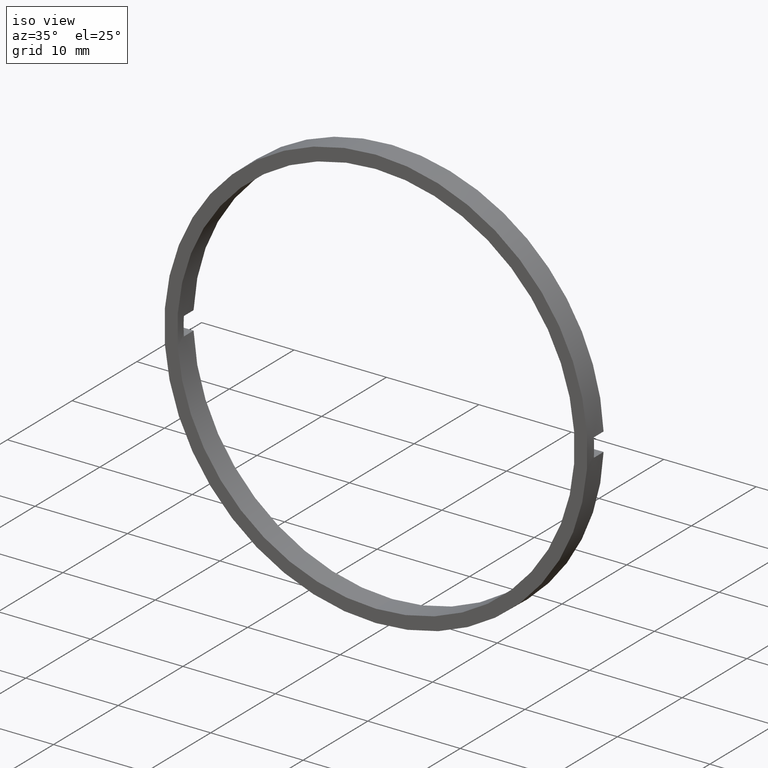
[diagram: clean part render]
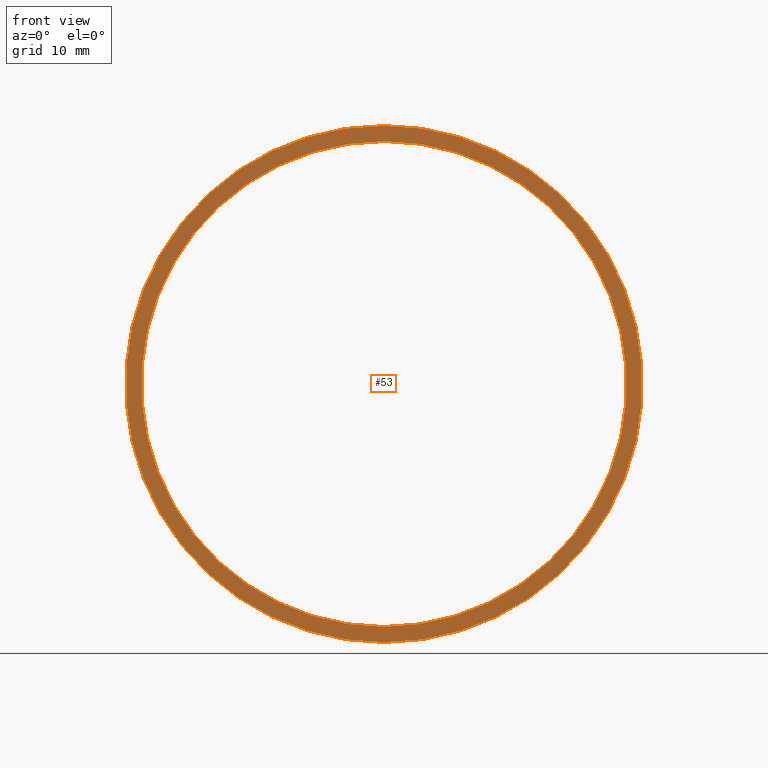
[diagram: tour spotlight — one face highlighted and labeled with its STEP entity id]
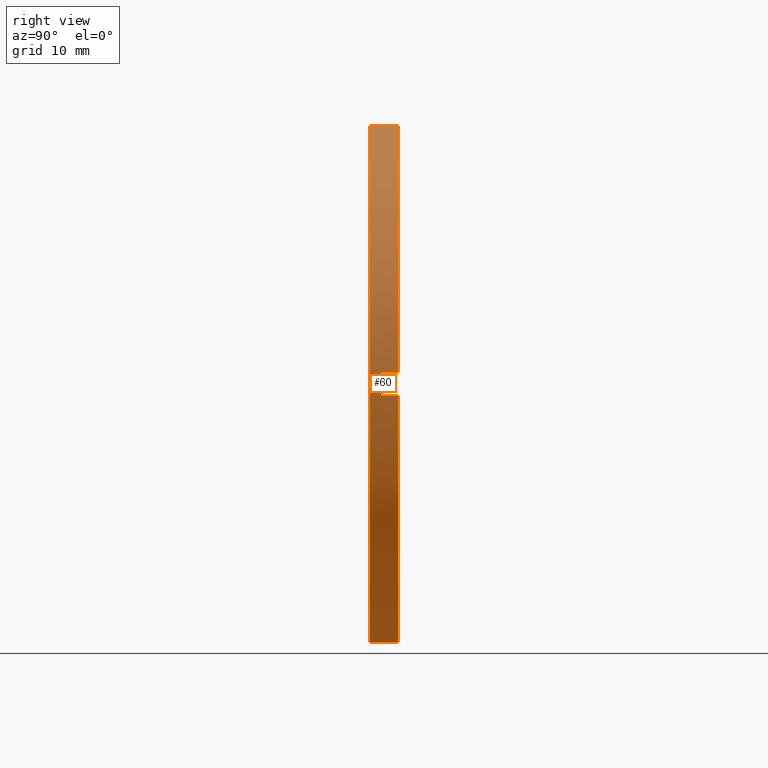
[diagram: tour spotlight — one face highlighted and labeled with its STEP entity id]
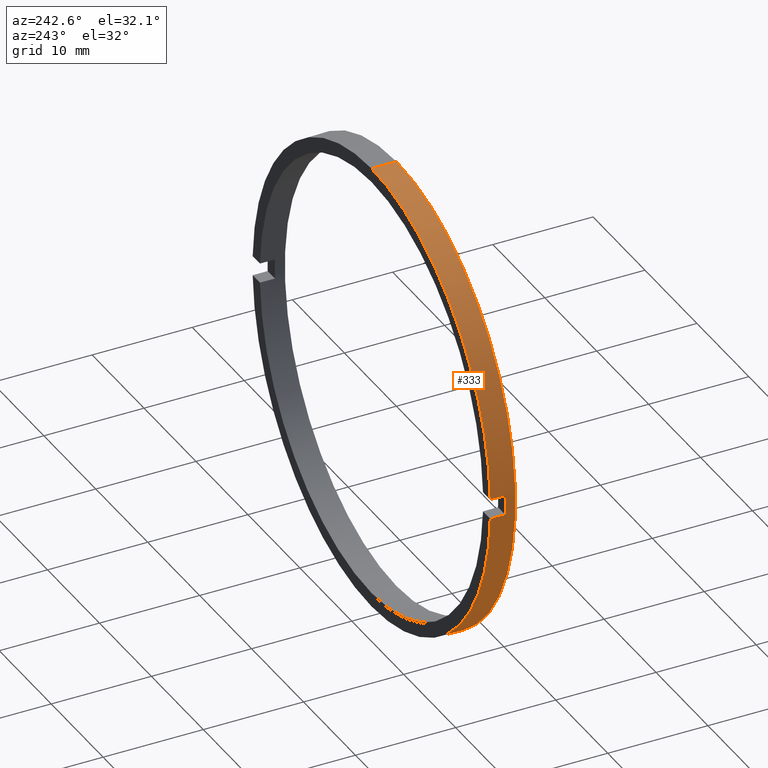
[diagram: tour spotlight — one face highlighted and labeled with its STEP entity id]
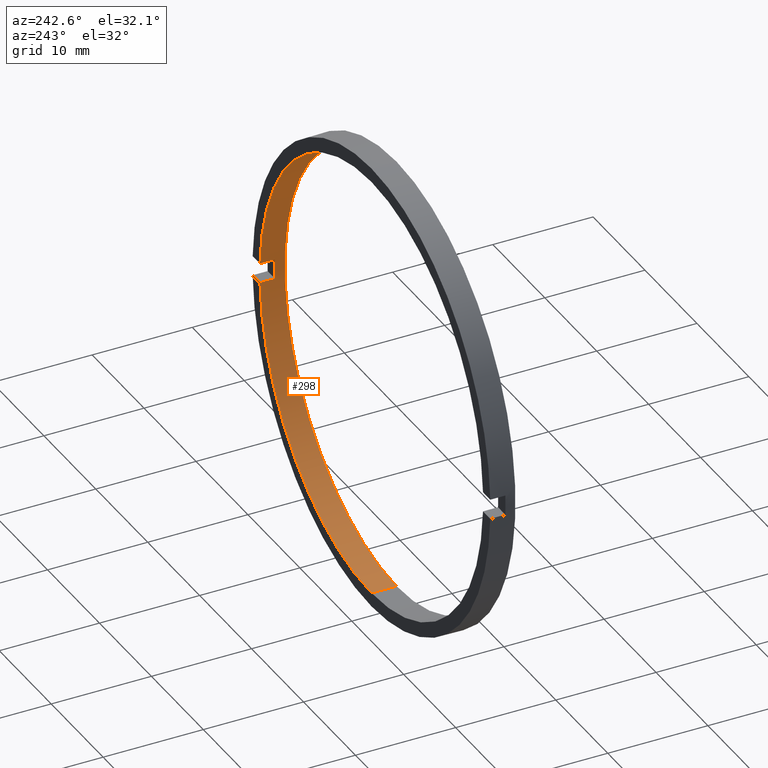
[diagram: tour spotlight — one face highlighted and labeled with its STEP entity id]
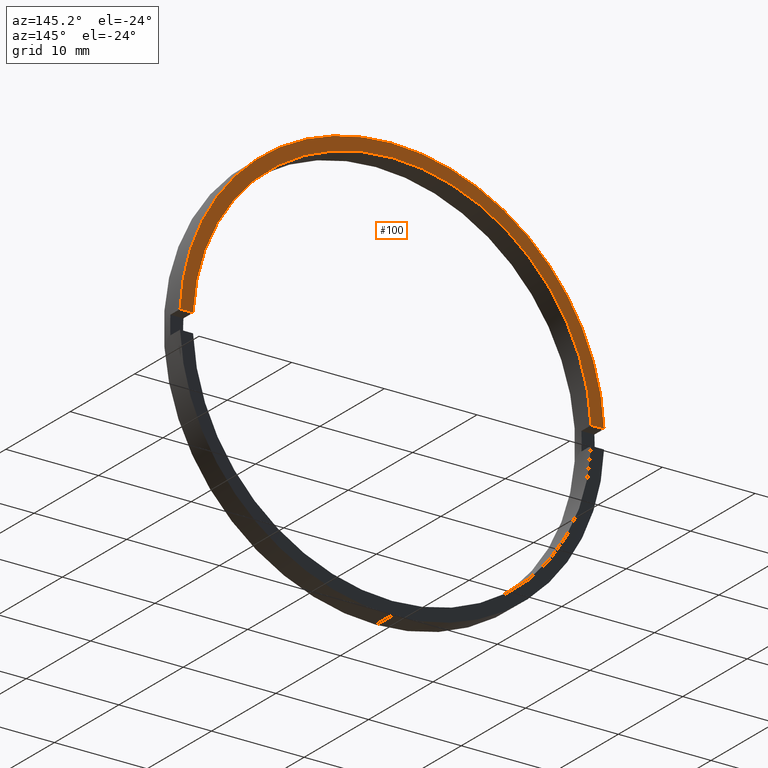
[diagram: tour spotlight — one face highlighted and labeled with its STEP entity id]
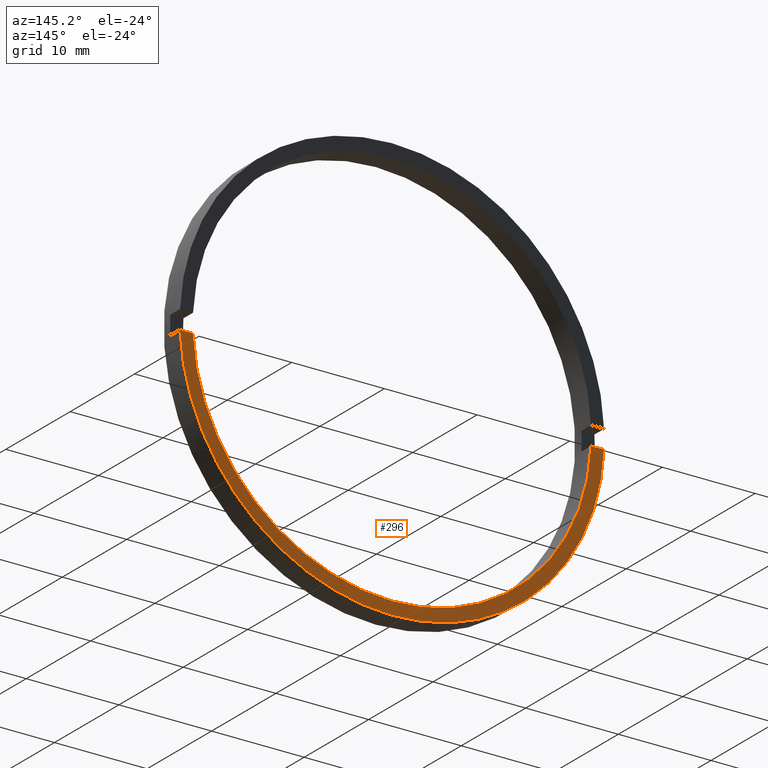
[diagram: tour spotlight — one face highlighted and labeled with its STEP entity id]
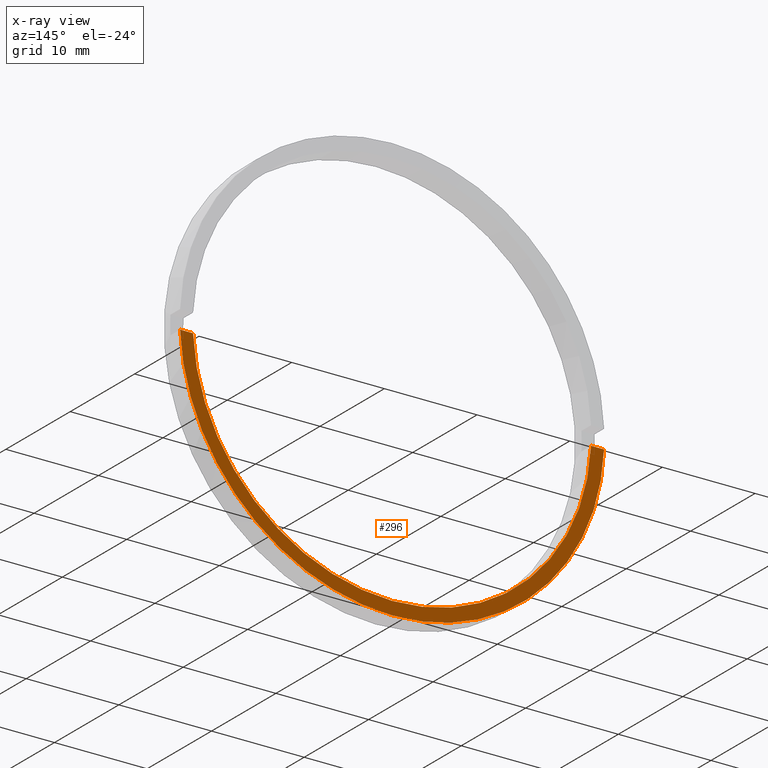
[diagram: x-ray of the same camera — body ghosted, this tour face saturated]
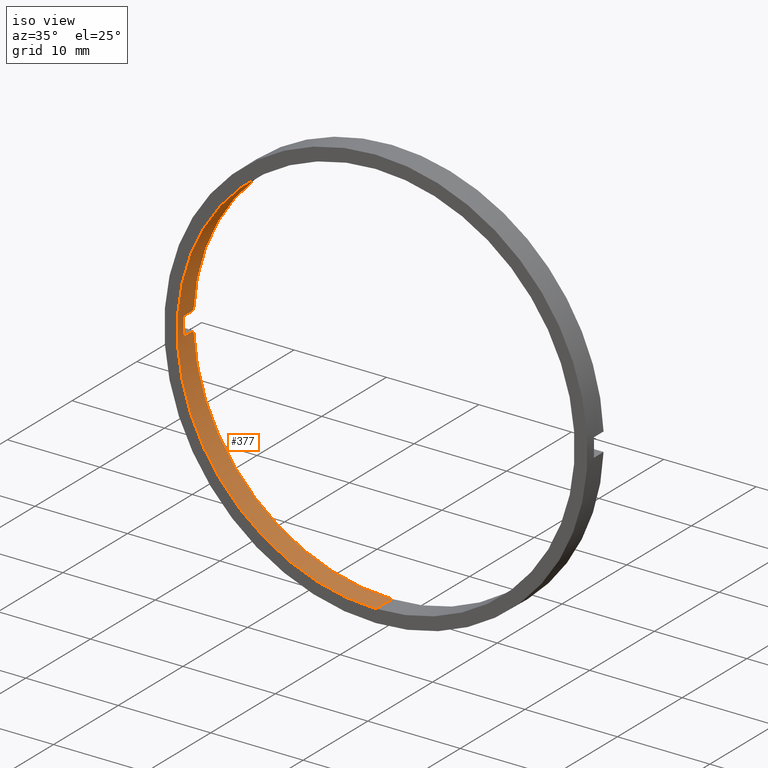
[diagram: tour spotlight — one face highlighted and labeled with its STEP entity id]
A machine part: a face-by-face anatomy tour. The part has 13 B-rep faces; the first image is the clean iso view, then the 7 largest visible faces are spotlighted one at a time (largest first), each with its STEP entity span.

Face 1 — front view, entity #53. In plain terms, the highlighted planar face has unit normal (-0, 1, 0).
Definition (entity closure, byte-faithful):
#1 = DIRECTION ( 'NONE',  ( 0.0000000000000000000, 0.0000000000000000000, 1.000000000000000000 ) ) ;
#2 = EDGE_LOOP ( 'NONE', ( #66, #15 ) ) ;
#15 = ORIENTED_EDGE ( 'NONE', *, *, #205, .F. ) ;
#22 = AXIS2_PLACEMENT_3D ( 'NONE', #202, #320, #395 ) ;
#28 = VERTEX_POINT ( 'NONE', #117 ) ;
#42 = CARTESIAN_POINT ( 'NONE',  ( 0.0000000000000000000, -4.464249787179428900, 0.0000000000000000000 ) ) ;
#44 = CARTESIAN_POINT ( 'NONE',  ( 0.0000000000000000000, -4.464249787179428900, 0.0000000000000000000 ) ) ;
#53 = ADVANCED_FACE ( 'NONE', ( #153, #353 ), #354, .F. ) ;
#66 = ORIENTED_EDGE ( 'NONE', *, *, #74, .F. ) ;
#74 = EDGE_CURVE ( 'NONE', #78, #28, #195, .T. ) ;
#78 = VERTEX_POINT ( 'NONE', #390 ) ;
#79 = EDGE_CURVE ( 'NONE', #286, #388, #393, .T. ) ;
#85 = EDGE_LOOP ( 'NONE', ( #260, #266 ) ) ;
#94 = CARTESIAN_POINT ( 'NONE',  ( 0.0000000000000000000, -4.464249787179428900, 0.0000000000000000000 ) ) ;
#117 = CARTESIAN_POINT ( 'NONE',  ( 2.804441170047439800E-015, -4.464249787179428900, -22.90000000000000600 ) ) ;
#131 = AXIS2_PLACEMENT_3D ( 'NONE', #44, #203, #1 ) ;
#134 = EDGE_CURVE ( 'NONE', #388, #286, #145, .T. ) ;
#145 = CIRCLE ( 'NONE', #22, 21.50000000000000400 ) ;
#150 = CARTESIAN_POINT ( 'NONE',  ( 0.0000000000000000000, -4.464249787179428900, 21.50000000000000400 ) ) ;
#153 = FACE_OUTER_BOUND ( 'NONE', #2, .T. ) ;
#163 = DIRECTION ( 'NONE',  ( 0.0000000000000000000, 0.0000000000000000000, 1.000000000000000000 ) ) ;
#195 = CIRCLE ( 'NONE', #422, 22.90000000000000600 ) ;
#202 = CARTESIAN_POINT ( 'NONE',  ( 0.0000000000000000000, -4.464249787179428900, 0.0000000000000000000 ) ) ;
#203 = DIRECTION ( 'NONE',  ( -0.0000000000000000000, 1.000000000000000000, -0.0000000000000000000 ) ) ;
#205 = EDGE_CURVE ( 'NONE', #28, #78, #330, .T. ) ;
#242 = DIRECTION ( 'NONE',  ( 0.0000000000000000000, 0.0000000000000000000, 1.000000000000000000 ) ) ;
#243 = DIRECTION ( 'NONE',  ( -0.0000000000000000000, 1.000000000000000000, -0.0000000000000000000 ) ) ;
#250 = DIRECTION ( 'NONE',  ( 0.0000000000000000000, 0.0000000000000000000, 1.000000000000000000 ) ) ;
#260 = ORIENTED_EDGE ( 'NONE', *, *, #134, .T. ) ;
#266 = ORIENTED_EDGE ( 'NONE', *, *, #79, .T. ) ;
#286 = VERTEX_POINT ( 'NONE', #404 ) ;
#297 = AXIS2_PLACEMENT_3D ( 'NONE', #316, #352, #163 ) ;
#316 = CARTESIAN_POINT ( 'NONE',  ( 21.50000000000000400, -4.464249787179428900, 0.0000000000000000000 ) ) ;
#320 = DIRECTION ( 'NONE',  ( -0.0000000000000000000, 1.000000000000000000, -0.0000000000000000000 ) ) ;
#329 = DIRECTION ( 'NONE',  ( -0.0000000000000000000, 1.000000000000000000, -0.0000000000000000000 ) ) ;
#330 = CIRCLE ( 'NONE', #436, 22.90000000000000600 ) ;
#352 = DIRECTION ( 'NONE',  ( -0.0000000000000000000, 1.000000000000000000, 0.0000000000000000000 ) ) ;
#353 = FACE_BOUND ( 'NONE', #85, .T. ) ;
#354 = PLANE ( 'NONE',  #297 ) ;
#388 = VERTEX_POINT ( 'NONE', #150 ) ;
#390 = CARTESIAN_POINT ( 'NONE',  ( 0.0000000000000000000, -4.464249787179428900, 22.90000000000000600 ) ) ;
#393 = CIRCLE ( 'NONE', #131, 21.50000000000000400 ) ;
#395 = DIRECTION ( 'NONE',  ( 0.0000000000000000000, 0.0000000000000000000, 1.000000000000000000 ) ) ;
#404 = CARTESIAN_POINT ( 'NONE',  ( 2.632990618166810000E-015, -4.464249787179428900, -21.50000000000000400 ) ) ;
#422 = AXIS2_PLACEMENT_3D ( 'NONE', #42, #243, #242 ) ;
#436 = AXIS2_PLACEMENT_3D ( 'NONE', #94, #329, #250 ) ;

Face 2 — right view, entity #60. In plain terms, the highlighted cylindrical surface (partial cylindrical patch) has radius 22.9 mm, axis along (-0, 1, -0).
Definition (entity closure, byte-faithful):
#5 = DIRECTION ( 'NONE',  ( 0.0000000000000000000, 0.0000000000000000000, 1.000000000000000000 ) ) ;
#12 = CIRCLE ( 'NONE', #125, 22.90000000000000600 ) ;
#13 = EDGE_CURVE ( 'NONE', #28, #345, #375, .T. ) ;
#17 = CARTESIAN_POINT ( 'NONE',  ( 22.87815552005886100, -1.964249787179430000, 1.000000000000000000 ) ) ;
#21 = VERTEX_POINT ( 'NONE', #386 ) ;
#28 = VERTEX_POINT ( 'NONE', #117 ) ;
#42 = CARTESIAN_POINT ( 'NONE',  ( 0.0000000000000000000, -4.464249787179428900, 0.0000000000000000000 ) ) ;
#43 = VECTOR ( 'NONE', #462, 1000.000000000000000 ) ;
#48 = LINE ( 'NONE', #238, #496 ) ;
#50 = DIRECTION ( 'NONE',  ( 0.0000000000000000000, 0.0000000000000000000, 1.000000000000000000 ) ) ;
#57 = EDGE_CURVE ( 'NONE', #199, #321, #48, .T. ) ;
#60 = ADVANCED_FACE ( 'NONE', ( #251 ), #174, .T. ) ;
#64 = ORIENTED_EDGE ( 'NONE', *, *, #232, .F. ) ;
#74 = EDGE_CURVE ( 'NONE', #78, #28, #195, .T. ) ;
#78 = VERTEX_POINT ( 'NONE', #390 ) ;
#99 = EDGE_CURVE ( 'NONE', #78, #230, #349, .T. ) ;
#117 = CARTESIAN_POINT ( 'NONE',  ( 2.804441170047439800E-015, -4.464249787179428900, -22.90000000000000600 ) ) ;
#125 = AXIS2_PLACEMENT_3D ( 'NONE', #182, #218, #255 ) ;
#132 = CARTESIAN_POINT ( 'NONE',  ( 22.87815552005887200, -3.464249787179428400, 0.9999999999999995600 ) ) ;
#139 = DIRECTION ( 'NONE',  ( 0.0000000000000000000, -1.000000000000000000, 0.0000000000000000000 ) ) ;
#154 = ORIENTED_EDGE ( 'NONE', *, *, #13, .T. ) ;
#160 = DIRECTION ( 'NONE',  ( -0.0000000000000000000, 1.000000000000000000, -0.0000000000000000000 ) ) ;
#169 = DIRECTION ( 'NONE',  ( -0.0000000000000000000, 1.000000000000000000, -0.0000000000000000000 ) ) ;
#171 = CARTESIAN_POINT ( 'NONE',  ( 0.0000000000000000000, 56.26084262701361600, 22.90000000000000600 ) ) ;
#174 = CYLINDRICAL_SURFACE ( 'NONE', #396, 22.90000000000000600 ) ;
#182 = CARTESIAN_POINT ( 'NONE',  ( 0.0000000000000000000, -3.464249787179428400, 0.0000000000000000000 ) ) ;
#195 = CIRCLE ( 'NONE', #422, 22.90000000000000600 ) ;
#196 = EDGE_CURVE ( 'NONE', #252, #21, #438, .T. ) ;
#199 = VERTEX_POINT ( 'NONE', #132 ) ;
#212 = CARTESIAN_POINT ( 'NONE',  ( 0.0000000000000000000, -1.964249787179427100, 22.90000000000000600 ) ) ;
#216 = EDGE_CURVE ( 'NONE', #230, #321, #484, .T. ) ;
#217 = DIRECTION ( 'NONE',  ( 0.0000000000000000000, 0.0000000000000000000, 1.000000000000000000 ) ) ;
#218 = DIRECTION ( 'NONE',  ( 0.0000000000000000000, 1.000000000000000000, 0.0000000000000000000 ) ) ;
#229 = VECTOR ( 'NONE', #139, 1000.000000000000000 ) ;
#230 = VERTEX_POINT ( 'NONE', #212 ) ;
#232 = EDGE_CURVE ( 'NONE', #252, #345, #506, .T. ) ;
#236 = CARTESIAN_POINT ( 'NONE',  ( 2.804441170047439800E-015, 56.26084262701361600, -22.90000000000000600 ) ) ;
#238 = CARTESIAN_POINT ( 'NONE',  ( 22.87815552005887600, 56.26084262701361600, 1.000000000000000000 ) ) ;
#240 = ORIENTED_EDGE ( 'NONE', *, *, #196, .T. ) ;
#241 = ORIENTED_EDGE ( 'NONE', *, *, #290, .F. ) ;
#242 = DIRECTION ( 'NONE',  ( 0.0000000000000000000, 0.0000000000000000000, 1.000000000000000000 ) ) ;
#243 = DIRECTION ( 'NONE',  ( -0.0000000000000000000, 1.000000000000000000, -0.0000000000000000000 ) ) ;
#249 = CARTESIAN_POINT ( 'NONE',  ( 0.0000000000000000000, -1.964249787179427100, 0.0000000000000000000 ) ) ;
#251 = FACE_OUTER_BOUND ( 'NONE', #355, .T. ) ;
#252 = VERTEX_POINT ( 'NONE', #284 ) ;
#255 = DIRECTION ( 'NONE',  ( 0.0000000000000000000, 0.0000000000000000000, 1.000000000000000000 ) ) ;
#263 = AXIS2_PLACEMENT_3D ( 'NONE', #249, #435, #50 ) ;
#277 = DIRECTION ( 'NONE',  ( -0.0000000000000000000, 1.000000000000000000, -0.0000000000000000000 ) ) ;
#284 = CARTESIAN_POINT ( 'NONE',  ( 22.87815552005886100, -1.964249787179430000, -1.000000000000000000 ) ) ;
#289 = CARTESIAN_POINT ( 'NONE',  ( 22.87815552005887600, 56.26084262701361600, -1.000000000000000000 ) ) ;
#290 = EDGE_CURVE ( 'NONE', #199, #21, #12, .T. ) ;
#304 = CARTESIAN_POINT ( 'NONE',  ( 2.804441170047439800E-015, -1.964249787179427100, -22.90000000000000600 ) ) ;
#310 = ORIENTED_EDGE ( 'NONE', *, *, #57, .T. ) ;
#318 = CARTESIAN_POINT ( 'NONE',  ( 0.0000000000000000000, 56.26084262701361600, 0.0000000000000000000 ) ) ;
#321 = VERTEX_POINT ( 'NONE', #17 ) ;
#328 = CARTESIAN_POINT ( 'NONE',  ( 0.0000000000000000000, -1.964249787179427100, 0.0000000000000000000 ) ) ;
#338 = ORIENTED_EDGE ( 'NONE', *, *, #74, .T. ) ;
#341 = AXIS2_PLACEMENT_3D ( 'NONE', #328, #402, #217 ) ;
#345 = VERTEX_POINT ( 'NONE', #304 ) ;
#349 = LINE ( 'NONE', #171, #433 ) ;
#355 = EDGE_LOOP ( 'NONE', ( #338, #154, #64, #240, #241, #310, #399, #356 ) ) ;
#356 = ORIENTED_EDGE ( 'NONE', *, *, #99, .F. ) ;
#375 = LINE ( 'NONE', #236, #43 ) ;
#386 = CARTESIAN_POINT ( 'NONE',  ( 22.87815552005887200, -3.464249787179428400, -0.9999999999999995600 ) ) ;
#390 = CARTESIAN_POINT ( 'NONE',  ( 0.0000000000000000000, -4.464249787179428900, 22.90000000000000600 ) ) ;
#396 = AXIS2_PLACEMENT_3D ( 'NONE', #318, #277, #5 ) ;
#399 = ORIENTED_EDGE ( 'NONE', *, *, #216, .F. ) ;
#402 = DIRECTION ( 'NONE',  ( -0.0000000000000000000, 1.000000000000000000, -0.0000000000000000000 ) ) ;
#422 = AXIS2_PLACEMENT_3D ( 'NONE', #42, #243, #242 ) ;
#433 = VECTOR ( 'NONE', #169, 1000.000000000000000 ) ;
#435 = DIRECTION ( 'NONE',  ( -0.0000000000000000000, 1.000000000000000000, -0.0000000000000000000 ) ) ;
#438 = LINE ( 'NONE', #289, #229 ) ;
#462 = DIRECTION ( 'NONE',  ( -0.0000000000000000000, 1.000000000000000000, -0.0000000000000000000 ) ) ;
#484 = CIRCLE ( 'NONE', #263, 22.90000000000000600 ) ;
#496 = VECTOR ( 'NONE', #160, 1000.000000000000000 ) ;
#506 = CIRCLE ( 'NONE', #341, 22.90000000000000600 ) ;

Face 3 — auxiliary view, entity #333. In plain terms, the highlighted cylindrical surface (partial cylindrical patch) has radius 22.9 mm, axis along (-0, 1, -0).
Definition (entity closure, byte-faithful):
#4 = EDGE_CURVE ( 'NONE', #167, #287, #423, .T. ) ;
#13 = EDGE_CURVE ( 'NONE', #28, #345, #375, .T. ) ;
#16 = CARTESIAN_POINT ( 'NONE',  ( 0.0000000000000000000, -1.964249787179427100, 0.0000000000000000000 ) ) ;
#24 = CARTESIAN_POINT ( 'NONE',  ( -22.87815552005887600, 56.26084262701361600, 1.000000000000000000 ) ) ;
#28 = VERTEX_POINT ( 'NONE', #117 ) ;
#33 = LINE ( 'NONE', #24, #172 ) ;
#39 = CARTESIAN_POINT ( 'NONE',  ( -22.87815552005887200, -3.464249787179428400, 0.9999999999999995600 ) ) ;
#43 = VECTOR ( 'NONE', #462, 1000.000000000000000 ) ;
#46 = CARTESIAN_POINT ( 'NONE',  ( -22.87815552005887600, -1.964249787179430000, -1.000000000000000000 ) ) ;
#47 = EDGE_CURVE ( 'NONE', #167, #115, #265, .T. ) ;
#58 = ORIENTED_EDGE ( 'NONE', *, *, #13, .F. ) ;
#77 = CARTESIAN_POINT ( 'NONE',  ( 0.0000000000000000000, -3.464249787179428400, 0.0000000000000000000 ) ) ;
#78 = VERTEX_POINT ( 'NONE', #390 ) ;
#83 = CIRCLE ( 'NONE', #348, 22.90000000000000600 ) ;
#89 = ORIENTED_EDGE ( 'NONE', *, *, #4, .T. ) ;
#94 = CARTESIAN_POINT ( 'NONE',  ( 0.0000000000000000000, -4.464249787179428900, 0.0000000000000000000 ) ) ;
#99 = EDGE_CURVE ( 'NONE', #78, #230, #349, .T. ) ;
#115 = VERTEX_POINT ( 'NONE', #39 ) ;
#117 = CARTESIAN_POINT ( 'NONE',  ( 2.804441170047439800E-015, -4.464249787179428900, -22.90000000000000600 ) ) ;
#130 = DIRECTION ( 'NONE',  ( -0.0000000000000000000, 1.000000000000000000, -0.0000000000000000000 ) ) ;
#138 = ORIENTED_EDGE ( 'NONE', *, *, #47, .F. ) ;
#141 = CARTESIAN_POINT ( 'NONE',  ( 0.0000000000000000000, 56.26084262701361600, 0.0000000000000000000 ) ) ;
#155 = ORIENTED_EDGE ( 'NONE', *, *, #334, .T. ) ;
#166 = EDGE_CURVE ( 'NONE', #406, #230, #186, .T. ) ;
#167 = VERTEX_POINT ( 'NONE', #248 ) ;
#169 = DIRECTION ( 'NONE',  ( -0.0000000000000000000, 1.000000000000000000, -0.0000000000000000000 ) ) ;
#171 = CARTESIAN_POINT ( 'NONE',  ( 0.0000000000000000000, 56.26084262701361600, 22.90000000000000600 ) ) ;
#172 = VECTOR ( 'NONE', #335, 1000.000000000000000 ) ;
#186 = CIRCLE ( 'NONE', #285, 22.90000000000000600 ) ;
#188 = CARTESIAN_POINT ( 'NONE',  ( -22.87815552005887600, -1.964249787179430000, 1.000000000000000000 ) ) ;
#194 = AXIS2_PLACEMENT_3D ( 'NONE', #141, #264, #259 ) ;
#197 = DIRECTION ( 'NONE',  ( 0.0000000000000000000, 1.000000000000000000, 0.0000000000000000000 ) ) ;
#205 = EDGE_CURVE ( 'NONE', #28, #78, #330, .T. ) ;
#212 = CARTESIAN_POINT ( 'NONE',  ( 0.0000000000000000000, -1.964249787179427100, 22.90000000000000600 ) ) ;
#224 = VECTOR ( 'NONE', #420, 1000.000000000000000 ) ;
#230 = VERTEX_POINT ( 'NONE', #212 ) ;
#236 = CARTESIAN_POINT ( 'NONE',  ( 2.804441170047439800E-015, 56.26084262701361600, -22.90000000000000600 ) ) ;
#248 = CARTESIAN_POINT ( 'NONE',  ( -22.87815552005887200, -3.464249787179428400, -0.9999999999999995600 ) ) ;
#250 = DIRECTION ( 'NONE',  ( 0.0000000000000000000, 0.0000000000000000000, 1.000000000000000000 ) ) ;
#259 = DIRECTION ( 'NONE',  ( 0.0000000000000000000, 0.0000000000000000000, 1.000000000000000000 ) ) ;
#264 = DIRECTION ( 'NONE',  ( -0.0000000000000000000, 1.000000000000000000, -0.0000000000000000000 ) ) ;
#265 = CIRCLE ( 'NONE', #488, 22.90000000000000600 ) ;
#273 = CARTESIAN_POINT ( 'NONE',  ( -22.87815552005887600, 56.26084262701361600, -1.000000000000000000 ) ) ;
#282 = ORIENTED_EDGE ( 'NONE', *, *, #205, .T. ) ;
#285 = AXIS2_PLACEMENT_3D ( 'NONE', #16, #130, #291 ) ;
#287 = VERTEX_POINT ( 'NONE', #46 ) ;
#291 = DIRECTION ( 'NONE',  ( 0.0000000000000000000, 0.0000000000000000000, 1.000000000000000000 ) ) ;
#302 = ORIENTED_EDGE ( 'NONE', *, *, #343, .F. ) ;
#304 = CARTESIAN_POINT ( 'NONE',  ( 2.804441170047439800E-015, -1.964249787179427100, -22.90000000000000600 ) ) ;
#329 = DIRECTION ( 'NONE',  ( -0.0000000000000000000, 1.000000000000000000, -0.0000000000000000000 ) ) ;
#330 = CIRCLE ( 'NONE', #436, 22.90000000000000600 ) ;
#333 = ADVANCED_FACE ( 'NONE', ( #470 ), #500, .T. ) ;
#334 = EDGE_CURVE ( 'NONE', #406, #115, #33, .T. ) ;
#335 = DIRECTION ( 'NONE',  ( 0.0000000000000000000, -1.000000000000000000, 0.0000000000000000000 ) ) ;
#343 = EDGE_CURVE ( 'NONE', #345, #287, #83, .T. ) ;
#345 = VERTEX_POINT ( 'NONE', #304 ) ;
#348 = AXIS2_PLACEMENT_3D ( 'NONE', #446, #489, #450 ) ;
#349 = LINE ( 'NONE', #171, #433 ) ;
#375 = LINE ( 'NONE', #236, #43 ) ;
#390 = CARTESIAN_POINT ( 'NONE',  ( 0.0000000000000000000, -4.464249787179428900, 22.90000000000000600 ) ) ;
#406 = VERTEX_POINT ( 'NONE', #188 ) ;
#420 = DIRECTION ( 'NONE',  ( -0.0000000000000000000, 1.000000000000000000, -0.0000000000000000000 ) ) ;
#423 = LINE ( 'NONE', #273, #224 ) ;
#433 = VECTOR ( 'NONE', #169, 1000.000000000000000 ) ;
#436 = AXIS2_PLACEMENT_3D ( 'NONE', #94, #329, #250 ) ;
#446 = CARTESIAN_POINT ( 'NONE',  ( 0.0000000000000000000, -1.964249787179427100, 0.0000000000000000000 ) ) ;
#450 = DIRECTION ( 'NONE',  ( 0.0000000000000000000, 0.0000000000000000000, 1.000000000000000000 ) ) ;
#461 = DIRECTION ( 'NONE',  ( 0.0000000000000000000, 0.0000000000000000000, 1.000000000000000000 ) ) ;
#462 = DIRECTION ( 'NONE',  ( -0.0000000000000000000, 1.000000000000000000, -0.0000000000000000000 ) ) ;
#465 = ORIENTED_EDGE ( 'NONE', *, *, #99, .T. ) ;
#470 = FACE_OUTER_BOUND ( 'NONE', #502, .T. ) ;
#472 = ORIENTED_EDGE ( 'NONE', *, *, #166, .F. ) ;
#488 = AXIS2_PLACEMENT_3D ( 'NONE', #77, #197, #461 ) ;
#489 = DIRECTION ( 'NONE',  ( -0.0000000000000000000, 1.000000000000000000, -0.0000000000000000000 ) ) ;
#500 = CYLINDRICAL_SURFACE ( 'NONE', #194, 22.90000000000000600 ) ;
#502 = EDGE_LOOP ( 'NONE', ( #58, #282, #465, #472, #155, #138, #89, #302 ) ) ;

Face 4 — auxiliary view, entity #298. In plain terms, the highlighted cylindrical surface (partial cylindrical patch) has radius 21.5 mm, axis along (-0, 1, -0).
Definition (entity closure, byte-faithful):
#9 = DIRECTION ( 'NONE',  ( 0.0000000000000000000, 0.0000000000000000000, 1.000000000000000000 ) ) ;
#22 = AXIS2_PLACEMENT_3D ( 'NONE', #202, #320, #395 ) ;
#26 = VECTOR ( 'NONE', #261, 1000.000000000000000 ) ;
#27 = VERTEX_POINT ( 'NONE', #80 ) ;
#36 = EDGE_CURVE ( 'NONE', #286, #49, #292, .T. ) ;
#41 = LINE ( 'NONE', #300, #444 ) ;
#49 = VERTEX_POINT ( 'NONE', #351 ) ;
#65 = AXIS2_PLACEMENT_3D ( 'NONE', #151, #193, #233 ) ;
#69 = EDGE_CURVE ( 'NONE', #322, #49, #270, .T. ) ;
#72 = VERTEX_POINT ( 'NONE', #358 ) ;
#75 = DIRECTION ( 'NONE',  ( -0.0000000000000000000, 1.000000000000000000, -0.0000000000000000000 ) ) ;
#80 = CARTESIAN_POINT ( 'NONE',  ( 21.47673159491452900, -3.464249787179428400, -0.9999999999999995600 ) ) ;
#95 = ORIENTED_EDGE ( 'NONE', *, *, #239, .T. ) ;
#114 = CARTESIAN_POINT ( 'NONE',  ( 0.0000000000000000000, -1.964249787179427100, 21.50000000000000400 ) ) ;
#118 = FACE_OUTER_BOUND ( 'NONE', #191, .T. ) ;
#119 = DIRECTION ( 'NONE',  ( 0.0000000000000000000, 0.0000000000000000000, 1.000000000000000000 ) ) ;
#122 = EDGE_CURVE ( 'NONE', #231, #72, #501, .T. ) ;
#134 = EDGE_CURVE ( 'NONE', #388, #286, #145, .T. ) ;
#137 = ORIENTED_EDGE ( 'NONE', *, *, #430, .T. ) ;
#145 = CIRCLE ( 'NONE', #22, 21.50000000000000400 ) ;
#150 = CARTESIAN_POINT ( 'NONE',  ( 0.0000000000000000000, -4.464249787179428900, 21.50000000000000400 ) ) ;
#151 = CARTESIAN_POINT ( 'NONE',  ( 0.0000000000000000000, -3.464249787179428400, 0.0000000000000000000 ) ) ;
#191 = EDGE_LOOP ( 'NONE', ( #385, #428, #137, #95, #213, #214, #344, #275 ) ) ;
#193 = DIRECTION ( 'NONE',  ( -0.0000000000000000000, -1.000000000000000000, -0.0000000000000000000 ) ) ;
#200 = CARTESIAN_POINT ( 'NONE',  ( 2.632990618166810000E-015, 56.26084262701361600, -21.50000000000000400 ) ) ;
#202 = CARTESIAN_POINT ( 'NONE',  ( 0.0000000000000000000, -4.464249787179428900, 0.0000000000000000000 ) ) ;
#208 = CARTESIAN_POINT ( 'NONE',  ( 21.47673159491453300, 56.26084262701361600, 1.000000000000000000 ) ) ;
#211 = CIRCLE ( 'NONE', #482, 21.50000000000000400 ) ;
#213 = ORIENTED_EDGE ( 'NONE', *, *, #122, .T. ) ;
#214 = ORIENTED_EDGE ( 'NONE', *, *, #474, .F. ) ;
#215 = CARTESIAN_POINT ( 'NONE',  ( 21.47673159491452900, -1.964249787179427100, 0.9999999999999995600 ) ) ;
#220 = CARTESIAN_POINT ( 'NONE',  ( 0.0000000000000000000, 56.26084262701361600, 0.0000000000000000000 ) ) ;
#231 = VERTEX_POINT ( 'NONE', #215 ) ;
#233 = DIRECTION ( 'NONE',  ( -1.154631945610162800E-014, 0.0000000000000000000, 1.000000000000000000 ) ) ;
#239 = EDGE_CURVE ( 'NONE', #491, #231, #211, .T. ) ;
#261 = DIRECTION ( 'NONE',  ( -0.0000000000000000000, 1.000000000000000000, -0.0000000000000000000 ) ) ;
#270 = CIRCLE ( 'NONE', #272, 21.50000000000000400 ) ;
#272 = AXIS2_PLACEMENT_3D ( 'NONE', #392, #431, #119 ) ;
#275 = ORIENTED_EDGE ( 'NONE', *, *, #69, .T. ) ;
#281 = VECTOR ( 'NONE', #469, 1000.000000000000000 ) ;
#286 = VERTEX_POINT ( 'NONE', #404 ) ;
#292 = LINE ( 'NONE', #200, #476 ) ;
#295 = CARTESIAN_POINT ( 'NONE',  ( 21.47673159491452900, -1.964249787179427100, -0.9999999999999995600 ) ) ;
#298 = ADVANCED_FACE ( 'NONE', ( #118 ), #405, .F. ) ;
#300 = CARTESIAN_POINT ( 'NONE',  ( 0.0000000000000000000, 56.26084262701361600, 21.50000000000000400 ) ) ;
#311 = EDGE_CURVE ( 'NONE', #27, #322, #411, .T. ) ;
#320 = DIRECTION ( 'NONE',  ( -0.0000000000000000000, 1.000000000000000000, -0.0000000000000000000 ) ) ;
#322 = VERTEX_POINT ( 'NONE', #295 ) ;
#340 = DIRECTION ( 'NONE',  ( -0.0000000000000000000, 1.000000000000000000, -0.0000000000000000000 ) ) ;
#344 = ORIENTED_EDGE ( 'NONE', *, *, #311, .T. ) ;
#351 = CARTESIAN_POINT ( 'NONE',  ( 2.632990618166810000E-015, -1.964249787179427100, -21.50000000000000400 ) ) ;
#358 = CARTESIAN_POINT ( 'NONE',  ( 21.47673159491452900, -3.464249787179428400, 0.9999999999999995600 ) ) ;
#367 = AXIS2_PLACEMENT_3D ( 'NONE', #220, #378, #449 ) ;
#372 = CARTESIAN_POINT ( 'NONE',  ( 21.47673159491453300, 56.26084262701361600, -1.000000000000000000 ) ) ;
#378 = DIRECTION ( 'NONE',  ( -0.0000000000000000000, 1.000000000000000000, -0.0000000000000000000 ) ) ;
#385 = ORIENTED_EDGE ( 'NONE', *, *, #36, .F. ) ;
#388 = VERTEX_POINT ( 'NONE', #150 ) ;
#392 = CARTESIAN_POINT ( 'NONE',  ( 0.0000000000000000000, -1.964249787179427100, 0.0000000000000000000 ) ) ;
#395 = DIRECTION ( 'NONE',  ( 0.0000000000000000000, 0.0000000000000000000, 1.000000000000000000 ) ) ;
#404 = CARTESIAN_POINT ( 'NONE',  ( 2.632990618166810000E-015, -4.464249787179428900, -21.50000000000000400 ) ) ;
#405 = CYLINDRICAL_SURFACE ( 'NONE', #367, 21.50000000000000400 ) ;
#411 = LINE ( 'NONE', #372, #26 ) ;
#428 = ORIENTED_EDGE ( 'NONE', *, *, #134, .F. ) ;
#430 = EDGE_CURVE ( 'NONE', #388, #491, #41, .T. ) ;
#431 = DIRECTION ( 'NONE',  ( -0.0000000000000000000, 1.000000000000000000, -0.0000000000000000000 ) ) ;
#432 = CIRCLE ( 'NONE', #65, 21.50000000000000400 ) ;
#444 = VECTOR ( 'NONE', #340, 1000.000000000000000 ) ;
#449 = DIRECTION ( 'NONE',  ( 0.0000000000000000000, 0.0000000000000000000, 1.000000000000000000 ) ) ;
#469 = DIRECTION ( 'NONE',  ( 0.0000000000000000000, -1.000000000000000000, 0.0000000000000000000 ) ) ;
#474 = EDGE_CURVE ( 'NONE', #27, #72, #432, .T. ) ;
#475 = DIRECTION ( 'NONE',  ( -0.0000000000000000000, 1.000000000000000000, -0.0000000000000000000 ) ) ;
#476 = VECTOR ( 'NONE', #75, 1000.000000000000000 ) ;
#481 = CARTESIAN_POINT ( 'NONE',  ( 0.0000000000000000000, -1.964249787179427100, 0.0000000000000000000 ) ) ;
#482 = AXIS2_PLACEMENT_3D ( 'NONE', #481, #475, #9 ) ;
#491 = VERTEX_POINT ( 'NONE', #114 ) ;
#501 = LINE ( 'NONE', #208, #281 ) ;

Face 5 — auxiliary view, entity #100. In plain terms, the highlighted planar face has unit normal (0, -1, 0).
Definition (entity closure, byte-faithful):
#6 = CARTESIAN_POINT ( 'NONE',  ( -21.47673159491452900, -1.964249787179427100, 0.9999999999999995600 ) ) ;
#9 = DIRECTION ( 'NONE',  ( 0.0000000000000000000, 0.0000000000000000000, 1.000000000000000000 ) ) ;
#16 = CARTESIAN_POINT ( 'NONE',  ( 0.0000000000000000000, -1.964249787179427100, 0.0000000000000000000 ) ) ;
#17 = CARTESIAN_POINT ( 'NONE',  ( 22.87815552005886100, -1.964249787179430000, 1.000000000000000000 ) ) ;
#35 = DIRECTION ( 'NONE',  ( 0.0000000000000000000, -0.0000000000000000000, -1.000000000000000000 ) ) ;
#37 = CARTESIAN_POINT ( 'NONE',  ( 21.50000000000000400, -1.964249787179430000, 0.0000000000000000000 ) ) ;
#50 = DIRECTION ( 'NONE',  ( 0.0000000000000000000, 0.0000000000000000000, 1.000000000000000000 ) ) ;
#51 = ORIENTED_EDGE ( 'NONE', *, *, #166, .T. ) ;
#54 = AXIS2_PLACEMENT_3D ( 'NONE', #336, #408, #96 ) ;
#86 = DIRECTION ( 'NONE',  ( 0.0000000000000000000, -1.000000000000000000, 0.0000000000000000000 ) ) ;
#90 = CARTESIAN_POINT ( 'NONE',  ( -26.85254027261461800, -1.964249787179430000, 1.000000000000000000 ) ) ;
#92 = DIRECTION ( 'NONE',  ( 1.000000000000000000, 0.0000000000000000000, 0.0000000000000000000 ) ) ;
#96 = DIRECTION ( 'NONE',  ( 0.0000000000000000000, 0.0000000000000000000, 1.000000000000000000 ) ) ;
#98 = LINE ( 'NONE', #90, #108 ) ;
#100 = ADVANCED_FACE ( 'NONE', ( #246 ), #363, .F. ) ;
#108 = VECTOR ( 'NONE', #92, 1000.000000000000000 ) ;
#114 = CARTESIAN_POINT ( 'NONE',  ( 0.0000000000000000000, -1.964249787179427100, 21.50000000000000400 ) ) ;
#130 = DIRECTION ( 'NONE',  ( -0.0000000000000000000, 1.000000000000000000, -0.0000000000000000000 ) ) ;
#164 = VERTEX_POINT ( 'NONE', #6 ) ;
#166 = EDGE_CURVE ( 'NONE', #406, #230, #186, .T. ) ;
#179 = CARTESIAN_POINT ( 'NONE',  ( -26.85254027261461800, -1.964249787179430000, 1.000000000000000000 ) ) ;
#186 = CIRCLE ( 'NONE', #285, 22.90000000000000600 ) ;
#188 = CARTESIAN_POINT ( 'NONE',  ( -22.87815552005887600, -1.964249787179430000, 1.000000000000000000 ) ) ;
#207 = ORIENTED_EDGE ( 'NONE', *, *, #360, .F. ) ;
#211 = CIRCLE ( 'NONE', #482, 21.50000000000000400 ) ;
#212 = CARTESIAN_POINT ( 'NONE',  ( 0.0000000000000000000, -1.964249787179427100, 22.90000000000000600 ) ) ;
#215 = CARTESIAN_POINT ( 'NONE',  ( 21.47673159491452900, -1.964249787179427100, 0.9999999999999995600 ) ) ;
#216 = EDGE_CURVE ( 'NONE', #230, #321, #484, .T. ) ;
#230 = VERTEX_POINT ( 'NONE', #212 ) ;
#231 = VERTEX_POINT ( 'NONE', #215 ) ;
#235 = EDGE_LOOP ( 'NONE', ( #51, #331, #276, #487, #207, #451 ) ) ;
#239 = EDGE_CURVE ( 'NONE', #491, #231, #211, .T. ) ;
#246 = FACE_OUTER_BOUND ( 'NONE', #235, .T. ) ;
#249 = CARTESIAN_POINT ( 'NONE',  ( 0.0000000000000000000, -1.964249787179427100, 0.0000000000000000000 ) ) ;
#256 = EDGE_CURVE ( 'NONE', #406, #164, #98, .T. ) ;
#263 = AXIS2_PLACEMENT_3D ( 'NONE', #249, #435, #50 ) ;
#276 = ORIENTED_EDGE ( 'NONE', *, *, #279, .F. ) ;
#279 = EDGE_CURVE ( 'NONE', #231, #321, #308, .T. ) ;
#285 = AXIS2_PLACEMENT_3D ( 'NONE', #16, #130, #291 ) ;
#291 = DIRECTION ( 'NONE',  ( 0.0000000000000000000, 0.0000000000000000000, 1.000000000000000000 ) ) ;
#308 = LINE ( 'NONE', #179, #398 ) ;
#321 = VERTEX_POINT ( 'NONE', #17 ) ;
#331 = ORIENTED_EDGE ( 'NONE', *, *, #216, .T. ) ;
#336 = CARTESIAN_POINT ( 'NONE',  ( 0.0000000000000000000, -1.964249787179427100, 0.0000000000000000000 ) ) ;
#360 = EDGE_CURVE ( 'NONE', #164, #491, #382, .T. ) ;
#363 = PLANE ( 'NONE',  #499 ) ;
#382 = CIRCLE ( 'NONE', #54, 21.50000000000000400 ) ;
#398 = VECTOR ( 'NONE', #437, 1000.000000000000000 ) ;
#406 = VERTEX_POINT ( 'NONE', #188 ) ;
#408 = DIRECTION ( 'NONE',  ( -0.0000000000000000000, 1.000000000000000000, -0.0000000000000000000 ) ) ;
#435 = DIRECTION ( 'NONE',  ( -0.0000000000000000000, 1.000000000000000000, -0.0000000000000000000 ) ) ;
#437 = DIRECTION ( 'NONE',  ( 1.000000000000000000, 0.0000000000000000000, 0.0000000000000000000 ) ) ;
#451 = ORIENTED_EDGE ( 'NONE', *, *, #256, .F. ) ;
#475 = DIRECTION ( 'NONE',  ( -0.0000000000000000000, 1.000000000000000000, -0.0000000000000000000 ) ) ;
#481 = CARTESIAN_POINT ( 'NONE',  ( 0.0000000000000000000, -1.964249787179427100, 0.0000000000000000000 ) ) ;
#482 = AXIS2_PLACEMENT_3D ( 'NONE', #481, #475, #9 ) ;
#484 = CIRCLE ( 'NONE', #263, 22.90000000000000600 ) ;
#487 = ORIENTED_EDGE ( 'NONE', *, *, #239, .F. ) ;
#491 = VERTEX_POINT ( 'NONE', #114 ) ;
#499 = AXIS2_PLACEMENT_3D ( 'NONE', #37, #86, #35 ) ;

Face 6 — auxiliary view, entity #296. An x-ray twin of the same camera follows (body ghosted, this face saturated) — the face is partly hidden behind the body. In plain terms, the highlighted planar face has unit normal (0, -1, 0).
Definition (entity closure, byte-faithful):
#3 = ORIENTED_EDGE ( 'NONE', *, *, #143, .F. ) ;
#7 = CIRCLE ( 'NONE', #455, 21.50000000000000400 ) ;
#11 = PLANE ( 'NONE',  #73 ) ;
#14 = ORIENTED_EDGE ( 'NONE', *, *, #183, .F. ) ;
#19 = VECTOR ( 'NONE', #210, 1000.000000000000000 ) ;
#46 = CARTESIAN_POINT ( 'NONE',  ( -22.87815552005887600, -1.964249787179430000, -1.000000000000000000 ) ) ;
#49 = VERTEX_POINT ( 'NONE', #351 ) ;
#52 = CARTESIAN_POINT ( 'NONE',  ( 21.50000000000000400, -1.964249787179430000, 0.0000000000000000000 ) ) ;
#62 = LINE ( 'NONE', #483, #299 ) ;
#69 = EDGE_CURVE ( 'NONE', #322, #49, #270, .T. ) ;
#73 = AXIS2_PLACEMENT_3D ( 'NONE', #52, #142, #257 ) ;
#81 = CARTESIAN_POINT ( 'NONE',  ( 0.0000000000000000000, -1.964249787179427100, 0.0000000000000000000 ) ) ;
#83 = CIRCLE ( 'NONE', #348, 22.90000000000000600 ) ;
#119 = DIRECTION ( 'NONE',  ( 0.0000000000000000000, 0.0000000000000000000, 1.000000000000000000 ) ) ;
#142 = DIRECTION ( 'NONE',  ( 0.0000000000000000000, -1.000000000000000000, 0.0000000000000000000 ) ) ;
#143 = EDGE_CURVE ( 'NONE', #49, #439, #7, .T. ) ;
#144 = FACE_OUTER_BOUND ( 'NONE', #301, .T. ) ;
#157 = EDGE_CURVE ( 'NONE', #439, #287, #464, .T. ) ;
#176 = CARTESIAN_POINT ( 'NONE',  ( -26.85254027261461800, -1.964249787179430000, -1.000000000000000000 ) ) ;
#177 = DIRECTION ( 'NONE',  ( -1.000000000000000000, -0.0000000000000000000, -0.0000000000000000000 ) ) ;
#183 = EDGE_CURVE ( 'NONE', #252, #322, #62, .T. ) ;
#192 = CARTESIAN_POINT ( 'NONE',  ( -21.47673159491452900, -1.964249787179427100, -0.9999999999999995600 ) ) ;
#210 = DIRECTION ( 'NONE',  ( -1.000000000000000000, -0.0000000000000000000, -0.0000000000000000000 ) ) ;
#217 = DIRECTION ( 'NONE',  ( 0.0000000000000000000, 0.0000000000000000000, 1.000000000000000000 ) ) ;
#232 = EDGE_CURVE ( 'NONE', #252, #345, #506, .T. ) ;
#244 = DIRECTION ( 'NONE',  ( -0.0000000000000000000, 1.000000000000000000, -0.0000000000000000000 ) ) ;
#252 = VERTEX_POINT ( 'NONE', #284 ) ;
#257 = DIRECTION ( 'NONE',  ( 0.0000000000000000000, -0.0000000000000000000, -1.000000000000000000 ) ) ;
#270 = CIRCLE ( 'NONE', #272, 21.50000000000000400 ) ;
#272 = AXIS2_PLACEMENT_3D ( 'NONE', #392, #431, #119 ) ;
#284 = CARTESIAN_POINT ( 'NONE',  ( 22.87815552005886100, -1.964249787179430000, -1.000000000000000000 ) ) ;
#287 = VERTEX_POINT ( 'NONE', #46 ) ;
#295 = CARTESIAN_POINT ( 'NONE',  ( 21.47673159491452900, -1.964249787179427100, -0.9999999999999995600 ) ) ;
#296 = ADVANCED_FACE ( 'NONE', ( #144 ), #11, .F. ) ;
#299 = VECTOR ( 'NONE', #177, 1000.000000000000000 ) ;
#301 = EDGE_LOOP ( 'NONE', ( #384, #369, #387, #3, #379, #14 ) ) ;
#304 = CARTESIAN_POINT ( 'NONE',  ( 2.804441170047439800E-015, -1.964249787179427100, -22.90000000000000600 ) ) ;
#322 = VERTEX_POINT ( 'NONE', #295 ) ;
#328 = CARTESIAN_POINT ( 'NONE',  ( 0.0000000000000000000, -1.964249787179427100, 0.0000000000000000000 ) ) ;
#341 = AXIS2_PLACEMENT_3D ( 'NONE', #328, #402, #217 ) ;
#343 = EDGE_CURVE ( 'NONE', #345, #287, #83, .T. ) ;
#345 = VERTEX_POINT ( 'NONE', #304 ) ;
#348 = AXIS2_PLACEMENT_3D ( 'NONE', #446, #489, #450 ) ;
#351 = CARTESIAN_POINT ( 'NONE',  ( 2.632990618166810000E-015, -1.964249787179427100, -21.50000000000000400 ) ) ;
#369 = ORIENTED_EDGE ( 'NONE', *, *, #343, .T. ) ;
#379 = ORIENTED_EDGE ( 'NONE', *, *, #69, .F. ) ;
#384 = ORIENTED_EDGE ( 'NONE', *, *, #232, .T. ) ;
#387 = ORIENTED_EDGE ( 'NONE', *, *, #157, .F. ) ;
#392 = CARTESIAN_POINT ( 'NONE',  ( 0.0000000000000000000, -1.964249787179427100, 0.0000000000000000000 ) ) ;
#402 = DIRECTION ( 'NONE',  ( -0.0000000000000000000, 1.000000000000000000, -0.0000000000000000000 ) ) ;
#431 = DIRECTION ( 'NONE',  ( -0.0000000000000000000, 1.000000000000000000, -0.0000000000000000000 ) ) ;
#439 = VERTEX_POINT ( 'NONE', #192 ) ;
#446 = CARTESIAN_POINT ( 'NONE',  ( 0.0000000000000000000, -1.964249787179427100, 0.0000000000000000000 ) ) ;
#450 = DIRECTION ( 'NONE',  ( 0.0000000000000000000, 0.0000000000000000000, 1.000000000000000000 ) ) ;
#455 = AXIS2_PLACEMENT_3D ( 'NONE', #81, #244, #467 ) ;
#464 = LINE ( 'NONE', #176, #19 ) ;
#467 = DIRECTION ( 'NONE',  ( 0.0000000000000000000, 0.0000000000000000000, 1.000000000000000000 ) ) ;
#483 = CARTESIAN_POINT ( 'NONE',  ( -26.85254027261461800, -1.964249787179430000, -1.000000000000000000 ) ) ;
#489 = DIRECTION ( 'NONE',  ( -0.0000000000000000000, 1.000000000000000000, -0.0000000000000000000 ) ) ;
#506 = CIRCLE ( 'NONE', #341, 22.90000000000000600 ) ;

Face 7 — iso view, entity #377. In plain terms, the highlighted cylindrical surface (partial cylindrical patch) has radius 21.5 mm, axis along (-0, 1, -0).
Definition (entity closure, byte-faithful):
#1 = DIRECTION ( 'NONE',  ( 0.0000000000000000000, 0.0000000000000000000, 1.000000000000000000 ) ) ;
#6 = CARTESIAN_POINT ( 'NONE',  ( -21.47673159491452900, -1.964249787179427100, 0.9999999999999995600 ) ) ;
#7 = CIRCLE ( 'NONE', #455, 21.50000000000000400 ) ;
#31 = DIRECTION ( 'NONE',  ( 0.0000000000000000000, -1.000000000000000000, 0.0000000000000000000 ) ) ;
#32 = ORIENTED_EDGE ( 'NONE', *, *, #36, .T. ) ;
#36 = EDGE_CURVE ( 'NONE', #286, #49, #292, .T. ) ;
#41 = LINE ( 'NONE', #300, #444 ) ;
#44 = CARTESIAN_POINT ( 'NONE',  ( 0.0000000000000000000, -4.464249787179428900, 0.0000000000000000000 ) ) ;
#49 = VERTEX_POINT ( 'NONE', #351 ) ;
#54 = AXIS2_PLACEMENT_3D ( 'NONE', #336, #408, #96 ) ;
#55 = CARTESIAN_POINT ( 'NONE',  ( 0.0000000000000000000, 56.26084262701361600, 0.0000000000000000000 ) ) ;
#71 = VECTOR ( 'NONE', #146, 1000.000000000000000 ) ;
#75 = DIRECTION ( 'NONE',  ( -0.0000000000000000000, 1.000000000000000000, -0.0000000000000000000 ) ) ;
#79 = EDGE_CURVE ( 'NONE', #286, #388, #393, .T. ) ;
#81 = CARTESIAN_POINT ( 'NONE',  ( 0.0000000000000000000, -1.964249787179427100, 0.0000000000000000000 ) ) ;
#96 = DIRECTION ( 'NONE',  ( 0.0000000000000000000, 0.0000000000000000000, 1.000000000000000000 ) ) ;
#102 = ORIENTED_EDGE ( 'NONE', *, *, #370, .T. ) ;
#105 = EDGE_CURVE ( 'NONE', #180, #206, #445, .T. ) ;
#114 = CARTESIAN_POINT ( 'NONE',  ( 0.0000000000000000000, -1.964249787179427100, 21.50000000000000400 ) ) ;
#124 = DIRECTION ( 'NONE',  ( 0.0000000000000000000, 0.0000000000000000000, 1.000000000000000000 ) ) ;
#129 = ORIENTED_EDGE ( 'NONE', *, *, #143, .T. ) ;
#131 = AXIS2_PLACEMENT_3D ( 'NONE', #44, #203, #1 ) ;
#135 = CARTESIAN_POINT ( 'NONE',  ( -21.47673159491452900, -3.464249787179428400, 0.9999999999999995600 ) ) ;
#143 = EDGE_CURVE ( 'NONE', #49, #439, #7, .T. ) ;
#146 = DIRECTION ( 'NONE',  ( -0.0000000000000000000, 1.000000000000000000, -0.0000000000000000000 ) ) ;
#149 = DIRECTION ( 'NONE',  ( -0.0000000000000000000, 1.000000000000000000, -0.0000000000000000000 ) ) ;
#150 = CARTESIAN_POINT ( 'NONE',  ( 0.0000000000000000000, -4.464249787179428900, 21.50000000000000400 ) ) ;
#164 = VERTEX_POINT ( 'NONE', #6 ) ;
#175 = ORIENTED_EDGE ( 'NONE', *, *, #360, .T. ) ;
#180 = VERTEX_POINT ( 'NONE', #135 ) ;
#185 = CYLINDRICAL_SURFACE ( 'NONE', #323, 21.50000000000000400 ) ;
#192 = CARTESIAN_POINT ( 'NONE',  ( -21.47673159491452900, -1.964249787179427100, -0.9999999999999995600 ) ) ;
#200 = CARTESIAN_POINT ( 'NONE',  ( 2.632990618166810000E-015, 56.26084262701361600, -21.50000000000000400 ) ) ;
#203 = DIRECTION ( 'NONE',  ( -0.0000000000000000000, 1.000000000000000000, -0.0000000000000000000 ) ) ;
#206 = VERTEX_POINT ( 'NONE', #254 ) ;
#219 = ORIENTED_EDGE ( 'NONE', *, *, #409, .T. ) ;
#244 = DIRECTION ( 'NONE',  ( -0.0000000000000000000, 1.000000000000000000, -0.0000000000000000000 ) ) ;
#247 = ORIENTED_EDGE ( 'NONE', *, *, #79, .F. ) ;
#253 = EDGE_LOOP ( 'NONE', ( #247, #32, #129, #219, #332, #102, #175, #477 ) ) ;
#254 = CARTESIAN_POINT ( 'NONE',  ( -21.47673159491452900, -3.464249787179428400, -0.9999999999999995600 ) ) ;
#278 = DIRECTION ( 'NONE',  ( -0.0000000000000000000, -1.000000000000000000, -0.0000000000000000000 ) ) ;
#280 = FACE_OUTER_BOUND ( 'NONE', #253, .T. ) ;
#286 = VERTEX_POINT ( 'NONE', #404 ) ;
#292 = LINE ( 'NONE', #200, #476 ) ;
#300 = CARTESIAN_POINT ( 'NONE',  ( 0.0000000000000000000, 56.26084262701361600, 21.50000000000000400 ) ) ;
#315 = LINE ( 'NONE', #339, #71 ) ;
#323 = AXIS2_PLACEMENT_3D ( 'NONE', #55, #149, #413 ) ;
#332 = ORIENTED_EDGE ( 'NONE', *, *, #105, .F. ) ;
#336 = CARTESIAN_POINT ( 'NONE',  ( 0.0000000000000000000, -1.964249787179427100, 0.0000000000000000000 ) ) ;
#339 = CARTESIAN_POINT ( 'NONE',  ( -21.47673159491453300, 56.26084262701361600, 1.000000000000000000 ) ) ;
#340 = DIRECTION ( 'NONE',  ( -0.0000000000000000000, 1.000000000000000000, -0.0000000000000000000 ) ) ;
#351 = CARTESIAN_POINT ( 'NONE',  ( 2.632990618166810000E-015, -1.964249787179427100, -21.50000000000000400 ) ) ;
#359 = CARTESIAN_POINT ( 'NONE',  ( 0.0000000000000000000, -3.464249787179428400, 0.0000000000000000000 ) ) ;
#360 = EDGE_CURVE ( 'NONE', #164, #491, #382, .T. ) ;
#361 = VECTOR ( 'NONE', #31, 1000.000000000000000 ) ;
#370 = EDGE_CURVE ( 'NONE', #180, #164, #315, .T. ) ;
#377 = ADVANCED_FACE ( 'NONE', ( #280 ), #185, .F. ) ;
#382 = CIRCLE ( 'NONE', #54, 21.50000000000000400 ) ;
#388 = VERTEX_POINT ( 'NONE', #150 ) ;
#393 = CIRCLE ( 'NONE', #131, 21.50000000000000400 ) ;
#404 = CARTESIAN_POINT ( 'NONE',  ( 2.632990618166810000E-015, -4.464249787179428900, -21.50000000000000400 ) ) ;
#408 = DIRECTION ( 'NONE',  ( -0.0000000000000000000, 1.000000000000000000, -0.0000000000000000000 ) ) ;
#409 = EDGE_CURVE ( 'NONE', #439, #206, #457, .T. ) ;
#413 = DIRECTION ( 'NONE',  ( 0.0000000000000000000, 0.0000000000000000000, 1.000000000000000000 ) ) ;
#430 = EDGE_CURVE ( 'NONE', #388, #491, #41, .T. ) ;
#439 = VERTEX_POINT ( 'NONE', #192 ) ;
#444 = VECTOR ( 'NONE', #340, 1000.000000000000000 ) ;
#445 = CIRCLE ( 'NONE', #447, 21.50000000000000400 ) ;
#447 = AXIS2_PLACEMENT_3D ( 'NONE', #359, #278, #124 ) ;
#455 = AXIS2_PLACEMENT_3D ( 'NONE', #81, #244, #467 ) ;
#457 = LINE ( 'NONE', #492, #361 ) ;
#467 = DIRECTION ( 'NONE',  ( 0.0000000000000000000, 0.0000000000000000000, 1.000000000000000000 ) ) ;
#476 = VECTOR ( 'NONE', #75, 1000.000000000000000 ) ;
#477 = ORIENTED_EDGE ( 'NONE', *, *, #430, .F. ) ;
#491 = VERTEX_POINT ( 'NONE', #114 ) ;
#492 = CARTESIAN_POINT ( 'NONE',  ( -21.47673159491453300, 56.26084262701361600, -1.000000000000000000 ) ) ;